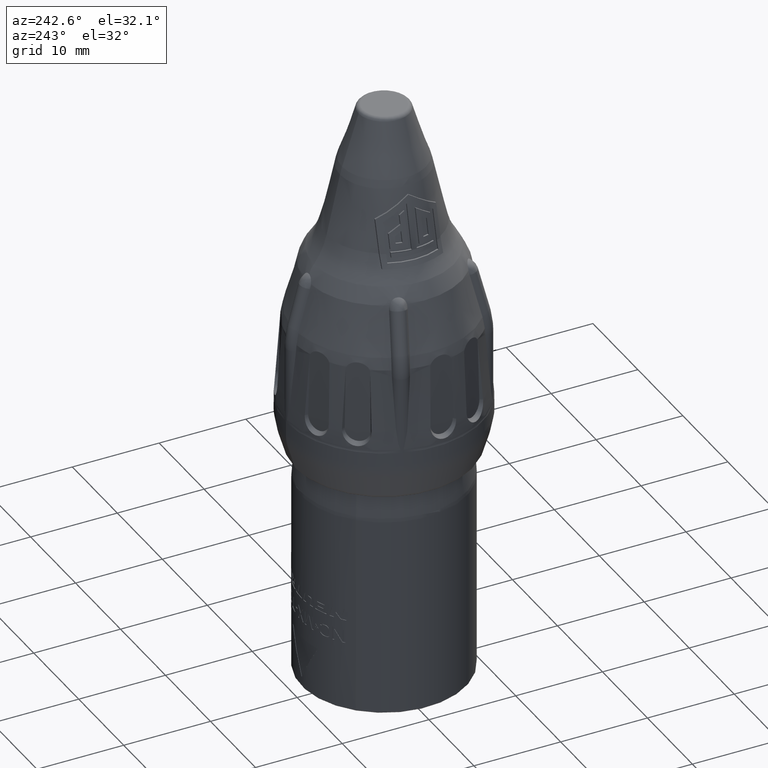
[diagram: clean part render]
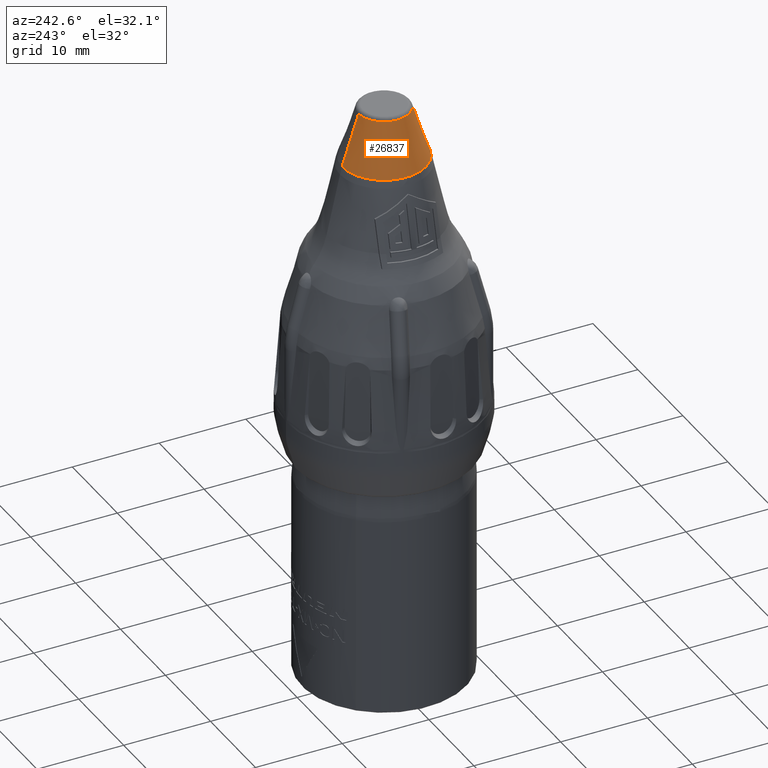
[diagram: same view with one face highlighted and labeled with its STEP entity id]
A machine part, auxiliary view. The second image highlights one B-rep face of the part: STEP entity #26837.
In plain terms, the highlighted conical surface has half-angle 18.011 deg.
Its self-contained STEP definition (entity closure, byte-faithful):
#8621=DIRECTION('',(2.103546970881E-11,3.092006033183E-1,-9.509968385371E-1));
#8622=VECTOR('',#8621,6.169744018469E0);
#8623=CARTESIAN_POINT('',(0.E0,2.925498419269E0,3.835460030166E1));
#8624=LINE('',#8623,#8622);
#8630=DIRECTION('',(-2.103499471866E-11,-3.092006033183E-1,-9.509968385371E-1));
#8631=VECTOR('',#8630,6.169744018469E0);
#8632=CARTESIAN_POINT('',(0.E0,-2.925498419269E0,3.835460030166E1));
#8633=LINE('',#8632,#8631);
#8639=CARTESIAN_POINT('',(0.E0,0.E0,3.835460030166E1));
#8640=DIRECTION('',(0.E0,0.E0,1.E0));
#8641=DIRECTION('',(0.E0,1.E0,0.E0));
#8642=AXIS2_PLACEMENT_3D('',#8639,#8640,#8641);
#8644=CARTESIAN_POINT('',(0.E0,0.E0,3.248719324552E1));
#8645=DIRECTION('',(0.E0,0.E0,-1.E0));
#8646=DIRECTION('',(0.E0,-1.E0,0.E0));
#8647=AXIS2_PLACEMENT_3D('',#8644,#8645,#8646);
#13023=CARTESIAN_POINT('',(0.E0,2.925498419269E0,3.835460030166E1));
#13024=CARTESIAN_POINT('',(1.297740102689E-10,4.833186992098E0,
3.248719324551E1));
#13025=VERTEX_POINT('',#13023);
#13026=VERTEX_POINT('',#13024);
#13027=CARTESIAN_POINT('',(0.E0,-2.925498419269E0,3.835460030166E1));
#13028=CARTESIAN_POINT('',(-1.297892694462E-10,-4.833186992098E0,
3.248719324551E1));
#13029=VERTEX_POINT('',#13027);
#13030=VERTEX_POINT('',#13028);
#26825=CARTESIAN_POINT('',(0.E0,0.E0,3.542089677359E1));
#26826=DIRECTION('',(0.E0,0.E0,-1.E0));
#26827=DIRECTION('',(0.E0,1.E0,0.E0));
#26828=AXIS2_PLACEMENT_3D('',#26825,#26826,#26827);
#26829=CONICAL_SURFACE('',#26828,3.879342705683E0,1.801106174806E1);
#26830=ORIENTED_EDGE('',*,*,#26808,.F.);
#26832=ORIENTED_EDGE('',*,*,#26831,.T.);
#26833=ORIENTED_EDGE('',*,*,#26811,.T.);
#26834=ORIENTED_EDGE('',*,*,#26745,.T.);
#26835=EDGE_LOOP('',(#26830,#26832,#26833,#26834));
#26836=FACE_OUTER_BOUND('',#26835,.F.);
#8643=CIRCLE('',#8642,2.925498419269E0);
#8648=CIRCLE('',#8647,4.833186992097E0);
#26745=EDGE_CURVE('',#13030,#13026,#8648,.T.);
#26808=EDGE_CURVE('',#13025,#13026,#8624,.T.);
#26811=EDGE_CURVE('',#13029,#13030,#8633,.T.);
#26831=EDGE_CURVE('',#13025,#13029,#8643,.T.);
#26837=ADVANCED_FACE('',(#26836),#26829,.T.);